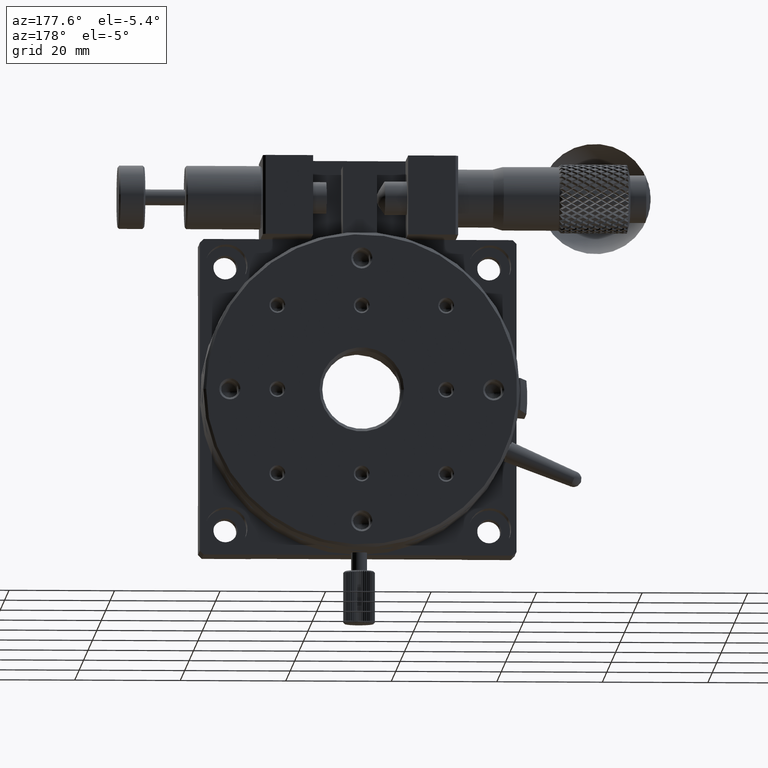
[diagram: clean part render]
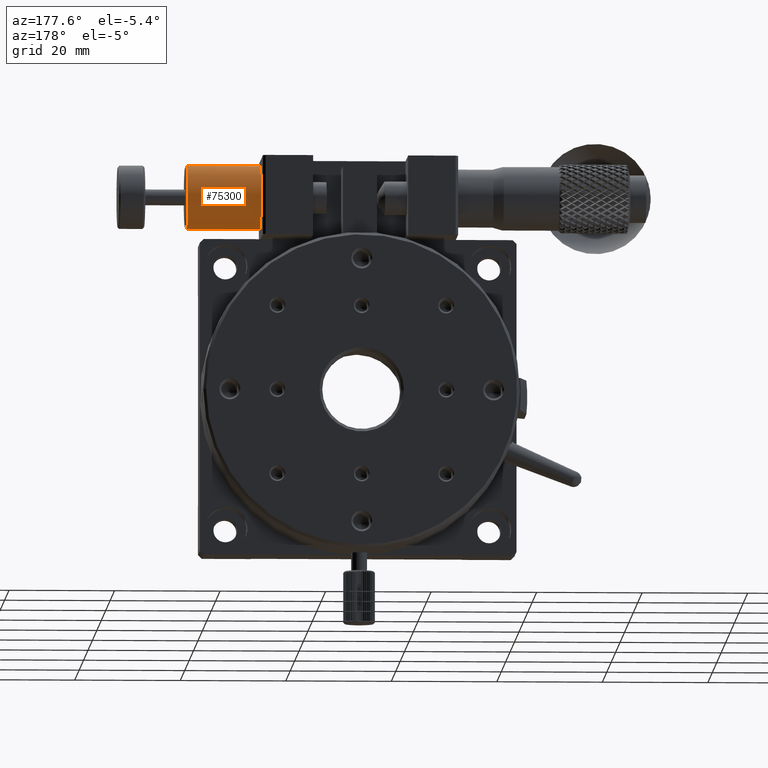
[diagram: same view with one face highlighted and labeled with its STEP entity id]
A machine part, auxiliary view. The second image highlights one B-rep face of the part: STEP entity #75300.
In plain terms, the highlighted cylindrical surface (bore or boss wall) has radius 6 mm, axis along (1, 0, 0).
Its self-contained STEP definition (entity closure, byte-faithful):
#1437 = AXIS2_PLACEMENT_3D ( 'NONE', #29618, #36578, #72716 ) ;
#2361 = EDGE_LOOP ( 'NONE', ( #4025 ) ) ;
#4025 = ORIENTED_EDGE ( 'NONE', *, *, #9383, .T. ) ;
#4600 = ORIENTED_EDGE ( 'NONE', *, *, #88885, .T. ) ;
#4702 = CIRCLE ( 'NONE', #74389, 6.000000000000000000 ) ;
#8768 = CARTESIAN_POINT ( 'NONE',  ( 48.79999999999999716, 7.000000000000000888, 7.500000000000000000 ) ) ;
#9383 = EDGE_CURVE ( 'NONE', #51473, #51473, #65600, .T. ) ;
#16178 = DIRECTION ( 'NONE',  ( 1.000000000000000000, 0.000000000000000000, 0.000000000000000000 ) ) ;
#19690 = AXIS2_PLACEMENT_3D ( 'NONE', #29221, #16178, #37533 ) ;
#29221 = CARTESIAN_POINT ( 'NONE',  ( 48.79999999999999716, 13.00000000000000178, 7.500000000000000000 ) ) ;
#29618 = CARTESIAN_POINT ( 'NONE',  ( 75.75000000000000000, 13.00000000000000178, 7.500000000000000000 ) ) ;
#36578 = DIRECTION ( 'NONE',  ( 1.000000000000000000, 0.000000000000000000, 0.000000000000000000 ) ) ;
#37533 = DIRECTION ( 'NONE',  ( 0.000000000000000000, -1.000000000000000000, 0.000000000000000000 ) ) ;
#41897 = CARTESIAN_POINT ( 'NONE',  ( 62.69999999999998863, 13.00000000000000178, 7.500000000000000000 ) ) ;
#50491 = FACE_OUTER_BOUND ( 'NONE', #73534, .T. ) ;
#51473 = VERTEX_POINT ( 'NONE', #8768 ) ;
#63522 = FACE_OUTER_BOUND ( 'NONE', #2361, .T. ) ;
#65600 = CIRCLE ( 'NONE', #19690, 6.000000000000000000 ) ;
#71374 = CYLINDRICAL_SURFACE ( 'NONE', #1437, 6.000000000000000000 ) ;
#72716 = DIRECTION ( 'NONE',  ( 0.000000000000000000, -1.000000000000000000, 0.000000000000000000 ) ) ;
#73534 = EDGE_LOOP ( 'NONE', ( #4600 ) ) ;
#74389 = AXIS2_PLACEMENT_3D ( 'NONE', #41897, #78498, #84568 ) ;
#75300 = ADVANCED_FACE ( 'NONE', ( #63522, #50491 ), #71374, .T. ) ;
#78498 = DIRECTION ( 'NONE',  ( -1.000000000000000000, -0.000000000000000000, -0.000000000000000000 ) ) ;
#80337 = VERTEX_POINT ( 'NONE', #88683 ) ;
#84568 = DIRECTION ( 'NONE',  ( 0.000000000000000000, -1.000000000000000000, 0.000000000000000000 ) ) ;
#88683 = CARTESIAN_POINT ( 'NONE',  ( 62.69999999999998863, 7.000000000000000888, 7.500000000000000000 ) ) ;
#88885 = EDGE_CURVE ( 'NONE', #80337, #80337, #4702, .T. ) ;